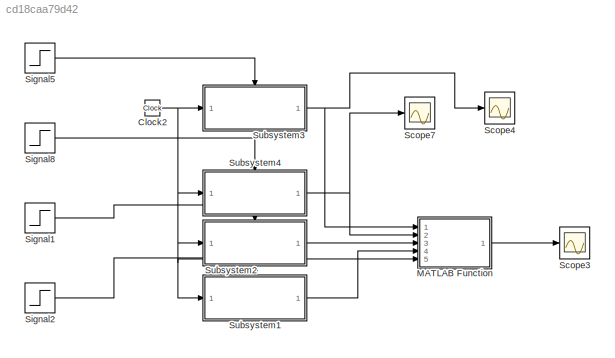
MODEL slx_cd18caa79d42
KIND model
CONFIG AbsTol = auto
CONFIG EnableMultiTasking = off
CONFIG FixedStep = 0.01
CONFIG MaxStep = auto
CONFIG MinStep = auto
CONFIG RelTol = 1e-3
CONFIG SampleTimeConstraint = Unconstrained
CONFIG SolverName = FixedStepAuto
CONFIG StartTime = 0.0
CONFIG StopTime = 100
BLOCK [Clock] Clock2
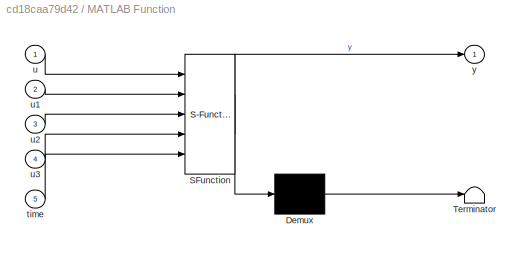
BLOCK [SubSystem] MATLAB Function
  ErrorFcn = Stateflow.Translate.translate
  PermitHierarchicalResolution = ExplicitOnly
  Ports = [5, 1]
  RequestExecContextInheritance = off
  SFBlockType = MATLAB Function
  TreatAsAtomicUnit = on
BLOCK [Demux] MATLAB Function/ Demux 
  Outputs = 1
  Ports = [1, 1]
BLOCK [S-Function] MATLAB Function/ SFunction 
  EnableBusSupport = on
  FunctionName = sf_sfun
  PortCounts = [5 2]
  Ports = [5, 2]
  SFcnIsStateOwnerBlock = off
  SFunctionDeploymentMode = off
  Tag = Stateflow S-Function 4
BLOCK [Terminator] MATLAB Function/ Terminator 
BLOCK [Inport] MATLAB Function/time
  Port = 5
BLOCK [Inport] MATLAB Function/u
BLOCK [Inport] MATLAB Function/u1
  Port = 2
BLOCK [Inport] MATLAB Function/u2
  Port = 3
BLOCK [Inport] MATLAB Function/u3
  Port = 4
BLOCK [Outport] MATLAB Function/y
BLOCK [Scope] Scope3
  Floating = off
  NumInputPorts = 1
  Ports = [1]
  ScopeSpecificationString = Simulink.scopes.TimeScopeBlockCfg('CurrentConfiguration', extmgr.ConfigurationSet(extmgr.Configuration('Core','General UI',true),extmgr.Configuration('Core','Source UI',true),extmgr.Configuration('Sources','WiredSimulink',true,'DataLoggingVariableName','ScopeData3'),extmgr.Configuration('Visuals','Time Domain',true,'SerializedDisplays',{struct('MinYLimReal','-675.00000','MaxYLimReal','75.00000','Y...<+1758ch>
BLOCK [Scope] Scope4
  Floating = off
  NumInputPorts = 1
  Ports = [1]
  ScopeSpecificationString = Simulink.scopes.TimeScopeBlockCfg('CurrentConfiguration', extmgr.ConfigurationSet(extmgr.Configuration('Core','General UI',true),extmgr.Configuration('Core','Source UI',true),extmgr.Configuration('Sources','WiredSimulink',true,'DataLoggingVariableName','ScopeData4'),extmgr.Configuration('Visuals','Time Domain',true,'SerializedDisplays',{struct('MinYLimReal','-0.25','MaxYLimReal','2.25','YLabelReal...<+1707ch>
BLOCK [Scope] Scope7
  Floating = off
  NumInputPorts = 1
  Ports = [1]
  ScopeSpecificationString = Simulink.scopes.TimeScopeBlockCfg('CurrentConfiguration', extmgr.ConfigurationSet(extmgr.Configuration('Core','General UI',true),extmgr.Configuration('Core','Source UI',true),extmgr.Configuration('Sources','WiredSimulink',true),extmgr.Configuration('Visuals','Time Domain',true,'SerializedDisplays',{struct('MinYLimReal','-5.625','MaxYLimReal','50.625','YLabelReal','','MinYLimMag','0.00000','MaxYLim...<+1700ch>
BLOCK [Step] Signal1
  SampleTime = 0
  Time = 30
BLOCK [Step] Signal2
  SampleTime = 0
  Time = 45
BLOCK [Step] Signal5
  SampleTime = 0
  Time = 2
BLOCK [Step] Signal8
  SampleTime = 0
  Time = 20
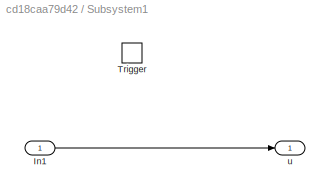
BLOCK [SubSystem] Subsystem1
  Ports = [1, 1, 0, 1]
  RequestExecContextInheritance = off
BLOCK [Inport] Subsystem1/In1
BLOCK [TriggerPort] Subsystem1/Trigger
  PortDimensions = 1
  Ports = []
  StatesWhenEnabling = held
  VariantControl = Variant
BLOCK [Outport] Subsystem1/u
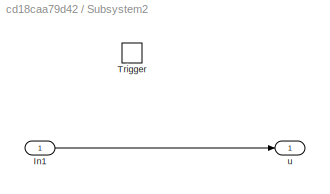
BLOCK [SubSystem] Subsystem2
  Ports = [1, 1, 0, 1]
  RequestExecContextInheritance = off
BLOCK [Inport] Subsystem2/In1
BLOCK [TriggerPort] Subsystem2/Trigger
  PortDimensions = 1
  Ports = []
  StatesWhenEnabling = held
  VariantControl = Variant
BLOCK [Outport] Subsystem2/u
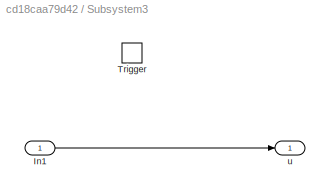
BLOCK [SubSystem] Subsystem3
  Ports = [1, 1, 0, 1]
  RequestExecContextInheritance = off
BLOCK [Inport] Subsystem3/In1
BLOCK [TriggerPort] Subsystem3/Trigger
  PortDimensions = 1
  Ports = []
  StatesWhenEnabling = held
  VariantControl = Variant
BLOCK [Outport] Subsystem3/u
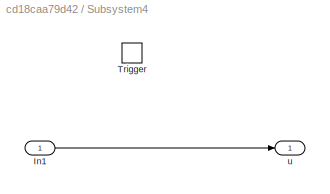
BLOCK [SubSystem] Subsystem4
  Ports = [1, 1, 0, 1]
  RequestExecContextInheritance = off
BLOCK [Inport] Subsystem4/In1
BLOCK [TriggerPort] Subsystem4/Trigger
  PortDimensions = 1
  Ports = []
  StatesWhenEnabling = held
  VariantControl = Variant
BLOCK [Outport] Subsystem4/u
NET Clock2:1 -> MATLAB Function:5, Subsystem1:1, Subsystem2:1, Subsystem3:1, Subsystem4:1
LINE MATLAB Function:1 -> Scope3:1
LINE Signal1:1 -> Subsystem2:trigger
LINE Signal2:1 -> Subsystem1:trigger
LINE Signal5:1 -> Subsystem3:trigger
LINE Signal8:1 -> Subsystem4:trigger
LINE Subsystem1/In1:1 -> Subsystem1/u:1
LINE Subsystem1:1 -> MATLAB Function:4
LINE Subsystem2/In1:1 -> Subsystem2/u:1
LINE Subsystem2:1 -> MATLAB Function:3
LINE Subsystem3/In1:1 -> Subsystem3/u:1
NET Subsystem3:1 -> MATLAB Function:1, Scope4:1
LINE Subsystem4/In1:1 -> Subsystem4/u:1
NET Subsystem4:1 -> MATLAB Function:2, Scope7:1
note: NET lines group one-source signal fan-out (src -> all destinations, sorted); 1:1 wires keep LINE
CHART MATLAB Function states=1 transitions=1
  STATE_LABEL 'eML_blk_kernel()'
  STATE_LABEL 'SCRIPT:\nfunction y = fcn(u,u1,u2,u3,time)\nif u<=0\n    y = -600;\nelse\n    if time < u+2\n        y = -600;\n    else\n        y = (time-u-2)*(-290+600)/(50-3)-600; \n    end\n    if u1 <= 0\n    else\n        if time > u1+2\n            y = (u1+2-u-2)*(-290+600)/(50-3)-600;\n        end\n    end\n    if u2 <= 0\n    else\n        if time > u2+2\n            y_ini = (u1+2-u-2)*(-290+600)/(50-3)-600;\n            y...<+1402ch>'
CHART  states=0 transitions=0
